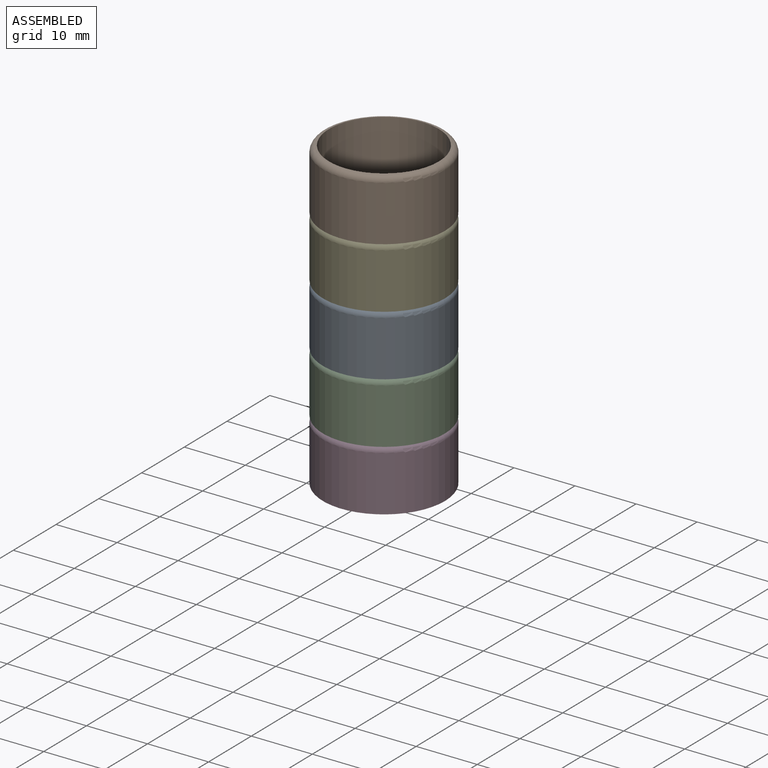
[diagram: assembled view]
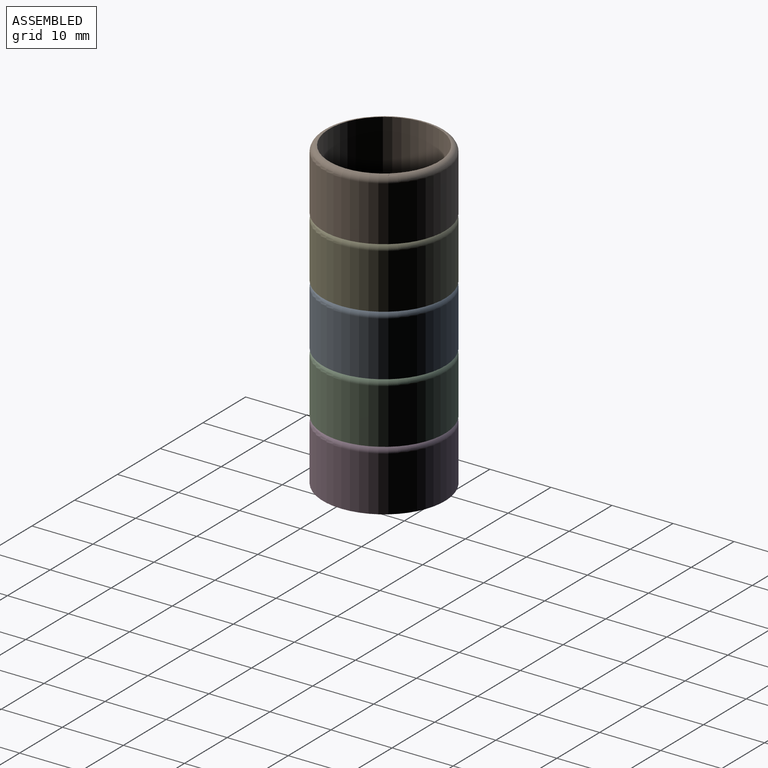
[diagram: assembled view, second angle]
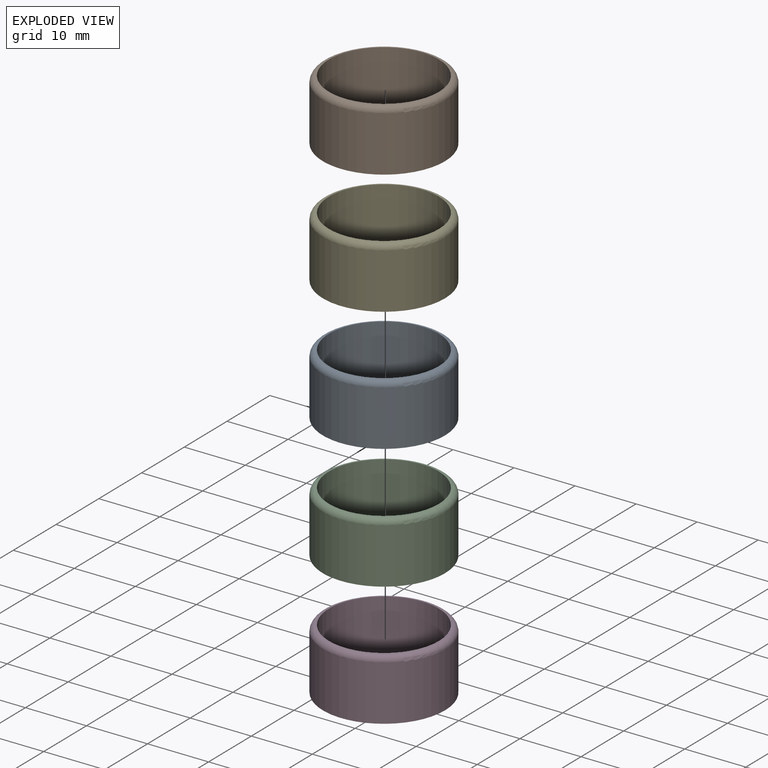
[diagram: exploded view]
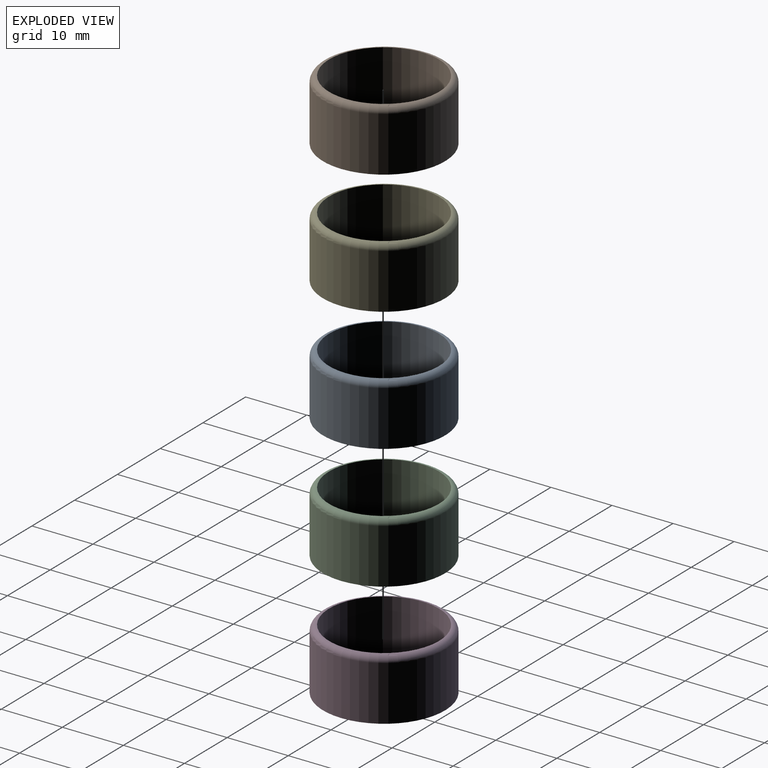
[diagram: exploded view, second angle]
ASSEMBLY  parts=5 mates=5
PART A: 4 faces, bbox 21.6x21.6x10 mm
  f0: cylinder r=10mm len=20mm, axis (0,0,-1), area 565.5mm2, adj f1,f3
  f1: plane 20x20mm, normal (0,0,-1), area 59.7mm2, adj f0,f2
  f2: cylinder r=9mm len=18mm, axis (0,0,-1), area 565.5mm2, adj f1,f3
  f3: torus R=9mm, axis (0,0,1), area 95.1mm2, adj f0,f2
PART B: same geometry as A
PART C: same geometry as A
PART D: same geometry as A
PART E: same geometry as A
PLACE A t=(-2.32,0.07,-2.89)mm
PLACE B t=(-2.32,0.07,17.11)mm
PLACE C t=(-2.32,0.07,-12.89)mm
PLACE D t=(-2.32,0.07,-22.89)mm
PLACE E t=(-2.32,0.07,7.11)mm
MATE fastened D.f2 <-> C.f0  axis (0,0,1) through (-2.32,0.07,-12.89)mm
MATE fastened E.f0 <-> A.f2  axis (0,0,-1) through (-2.32,0.07,7.11)mm
MATE fastened B.f0 <-> E.f2  axis (0,0,-1) through (-2.32,0.07,17.11)mm
MATE fastened C.f2 <-> A.f0  axis (0,0,-1) through (-2.32,0.07,-2.89)mm
MATE fastened C.f0 <-> C.f0  axis (0,0,-1) through (-2.32,0.07,-12.89)mm
